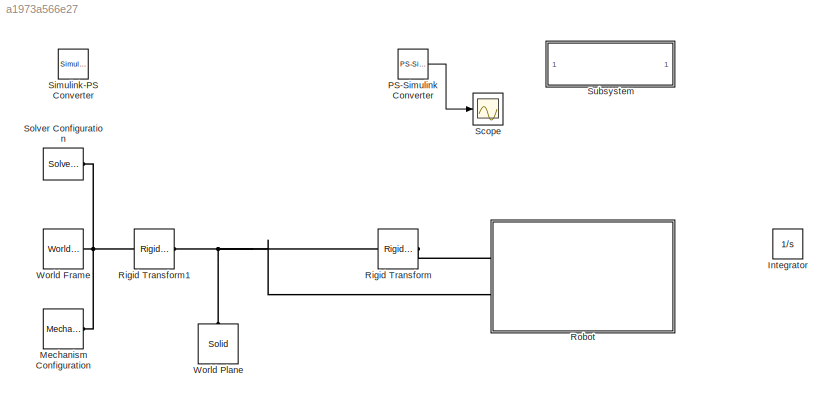
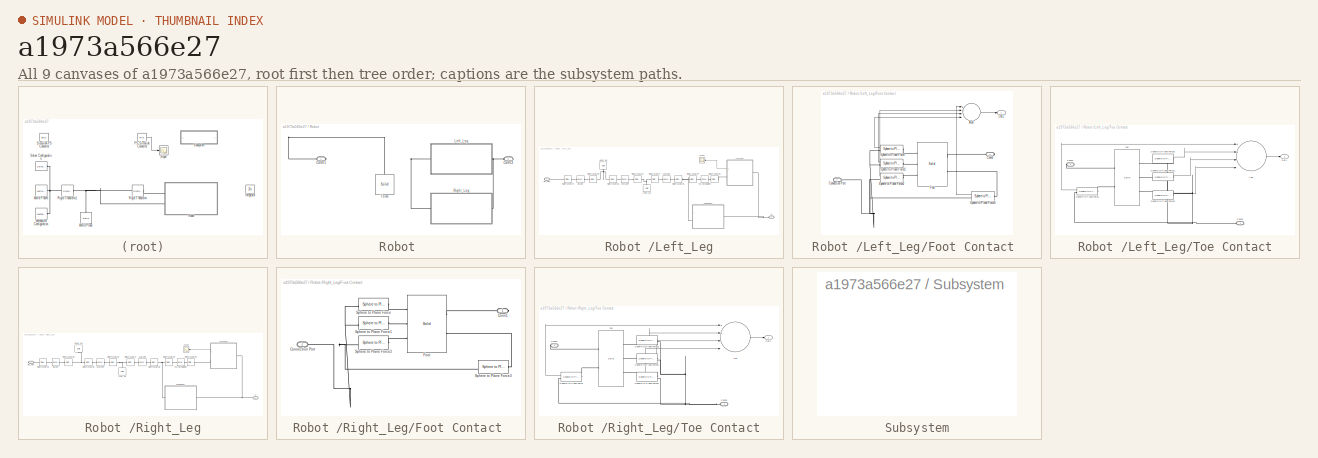
[diagram: thumbnail index - all 9 canvases of the model, root first then tree order]
MODEL slx_a1973a566e27
KIND model
CONFIG AbsTol = auto
CONFIG EnableMultiTasking = on
CONFIG FixedStep = 0.001
CONFIG MaxStep = auto
CONFIG MinStep = auto
CONFIG PreLoadFcn = parameters;\n
CONFIG RelTol = 1e-3
CONFIG SampleTimeConstraint = Unconstrained
CONFIG Solver = ode4
CONFIG SolverName = ode4
CONFIG StartTime = 0.0
CONFIG StopTime = 10.0
BLOCK [Integrator] Integrator
  Ports = [1, 1]
BLOCK [Reference] Mechanism Configuration  REF=sm_lib/Utilities/Mechanism
Configuration
  Ports = [0, 0, 0, 0, 0, 0, 1]
  SourceBlock = sm_lib/Utilities/Mechanism\nConfiguration
  SourceProductBaseCode = MS
  SourceProductName = Simscape Multibody
  SourceType = Mechanism\nConfiguration
BLOCK [Reference] PS-Simulink Converter  REF=nesl_utility/PS-Simulink
Converter
  Ports = [0, 1, 0, 0, 0, 1]
  SourceBlock = nesl_utility/PS-Simulink\nConverter
  SourceProductBaseCode = SS
  SourceProductName = Simscape
  SourceType = PS-Simulink\nConverter
BLOCK [Reference] Rigid Transform  REF=sm_lib/Frames and
Transforms/Rigid
Transform
  Ports = [0, 0, 0, 0, 0, 1, 1]
  SourceBlock = sm_lib/Frames and\nTransforms/Rigid\nTransform
  SourceProductBaseCode = MS
  SourceProductName = Simscape Multibody
  SourceType = Rigid\nTransform
BLOCK [Reference] Rigid Transform1  REF=sm_lib/Frames and
Transforms/Rigid
Transform
  Ports = [0, 0, 0, 0, 0, 1, 1]
  SourceBlock = sm_lib/Frames and\nTransforms/Rigid\nTransform
  SourceProductBaseCode = MS
  SourceProductName = Simscape Multibody
  SourceType = Rigid\nTransform
BLOCK [SubSystem] Robot 
  Ports = [0, 0, 0, 0, 0, 2]
  RequestExecContextInheritance = off
BLOCK [PMIOPort] Robot /Conn1
  Side = Left
BLOCK [PMIOPort] Robot /Conn2
  Port = 2
  Side = Left
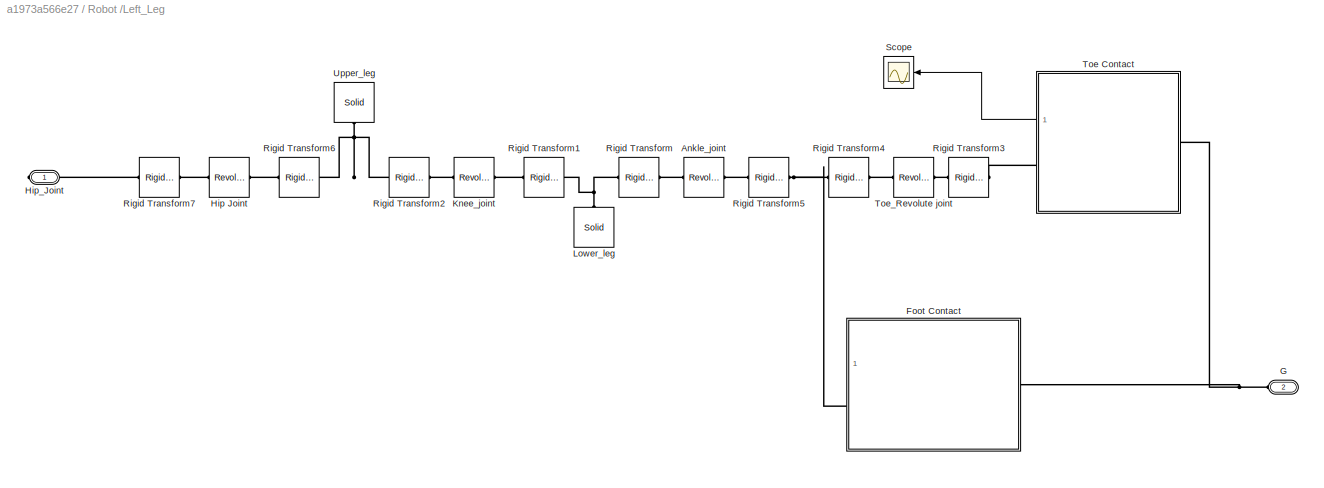
BLOCK [SubSystem] Robot /Left_Leg
  Ports = [0, 0, 0, 0, 0, 1, 1]
  RequestExecContextInheritance = off
BLOCK [Reference] Robot /Left_Leg/Ankle_joint  REF=sm_lib/Joints/Revolute Joint
  Ports = [0, 0, 0, 0, 0, 1, 1]
  SourceBlock = sm_lib/Joints/Revolute Joint
  SourceProductBaseCode = MS
  SourceProductName = Simscape Multibody
  SourceType = Revolute Joint
BLOCK [SubSystem] Robot /Left_Leg/Foot Contact 
  Ports = [0, 1, 0, 0, 0, 1, 1]
  RequestExecContextInheritance = off
BLOCK [Sum] Robot /Left_Leg/Foot Contact /Add
  InputSameDT = off
  Inputs = 4
  OutDataTypeStr = Inherit: Inherit via internal rule
  Ports = [4, 1]
  SaturateOnIntegerOverflow = off
BLOCK [PMIOPort] Robot /Left_Leg/Foot Contact /Conn1
  Side = Right
BLOCK [PMIOPort] Robot /Left_Leg/Foot Contact /Connection Port
  Port = 2
  Side = Left
BLOCK [Reference] Robot /Left_Leg/Foot Contact /Foot  REF=sm_lib/Body Elements/Solid
  Ports = [0, 0, 0, 0, 0, 3, 2]
  SourceBlock = sm_lib/Body Elements/Solid
  SourceProductBaseCode = MS
  SourceProductName = Simscape Multibody
  SourceType = Solid
BLOCK [Outport] Robot /Left_Leg/Foot Contact /Out1
  IconDisplay = Port number
BLOCK [Reference] Robot /Left_Leg/Foot Contact /Sphere to Plane Force  REF=Contact_Forces_Lib/3D/Sphere to Plane Force
  Ports = [0, 1, 0, 0, 0, 1, 1]
  SourceBlock = Contact_Forces_Lib/3D/Sphere to Plane Force
  SourceType = Sphere to Plane Force
BLOCK [Reference] Robot /Left_Leg/Foot Contact /Sphere to Plane Force1  REF=Contact_Forces_Lib/3D/Sphere to Plane Force
  Ports = [0, 1, 0, 0, 0, 1, 1]
  SourceBlock = Contact_Forces_Lib/3D/Sphere to Plane Force
  SourceType = Sphere to Plane Force
BLOCK [Reference] Robot /Left_Leg/Foot Contact /Sphere to Plane Force2  REF=Contact_Forces_Lib/3D/Sphere to Plane Force
  Ports = [0, 1, 0, 0, 0, 1, 1]
  SourceBlock = Contact_Forces_Lib/3D/Sphere to Plane Force
  SourceType = Sphere to Plane Force
BLOCK [Reference] Robot /Left_Leg/Foot Contact /Sphere to Plane Force3  REF=Contact_Forces_Lib/3D/Sphere to Plane Force
  Ports = [0, 1, 0, 0, 0, 1, 1]
  SourceBlock = Contact_Forces_Lib/3D/Sphere to Plane Force
  SourceType = Sphere to Plane Force
BLOCK [PMIOPort] Robot /Left_Leg/G
  Port = 2
  Side = Left
BLOCK [Reference] Robot /Left_Leg/Hip Joint  REF=sm_lib/Joints/Revolute Joint
  Ports = [0, 0, 0, 0, 0, 1, 1]
  SourceBlock = sm_lib/Joints/Revolute Joint
  SourceProductBaseCode = MS
  SourceProductName = Simscape Multibody
  SourceType = Revolute Joint
BLOCK [PMIOPort] Robot /Left_Leg/Hip_Joint
  Side = Right
BLOCK [Reference] Robot /Left_Leg/Knee_joint  REF=sm_lib/Joints/Revolute Joint
  Ports = [0, 0, 0, 0, 0, 1, 1]
  SourceBlock = sm_lib/Joints/Revolute Joint
  SourceProductBaseCode = MS
  SourceProductName = Simscape Multibody
  SourceType = Revolute Joint
BLOCK [Reference] Robot /Left_Leg/Lower_leg  REF=sm_lib/Body Elements/Solid
  Ports = [0, 0, 0, 0, 0, 0, 1]
  SourceBlock = sm_lib/Body Elements/Solid
  SourceProductBaseCode = MS
  SourceProductName = Simscape Multibody
  SourceType = Solid
BLOCK [Reference] Robot /Left_Leg/Rigid Transform  REF=sm_lib/Frames and
Transforms/Rigid
Transform
  Ports = [0, 0, 0, 0, 0, 1, 1]
  SourceBlock = sm_lib/Frames and\nTransforms/Rigid\nTransform
  SourceProductBaseCode = MS
  SourceProductName = Simscape Multibody
  SourceType = Rigid\nTransform
BLOCK [Reference] Robot /Left_Leg/Rigid Transform1  REF=sm_lib/Frames and
Transforms/Rigid
Transform
  Ports = [0, 0, 0, 0, 0, 1, 1]
  SourceBlock = sm_lib/Frames and\nTransforms/Rigid\nTransform
  SourceProductBaseCode = MS
  SourceProductName = Simscape Multibody
  SourceType = Rigid\nTransform
BLOCK [Reference] Robot /Left_Leg/Rigid Transform2  REF=sm_lib/Frames and
Transforms/Rigid
Transform
  Ports = [0, 0, 0, 0, 0, 1, 1]
  SourceBlock = sm_lib/Frames and\nTransforms/Rigid\nTransform
  SourceProductBaseCode = MS
  SourceProductName = Simscape Multibody
  SourceType = Rigid\nTransform
BLOCK [Reference] Robot /Left_Leg/Rigid Transform3  REF=sm_lib/Frames and
Transforms/Rigid
Transform
  Ports = [0, 0, 0, 0, 0, 1, 1]
  SourceBlock = sm_lib/Frames and\nTransforms/Rigid\nTransform
  SourceProductBaseCode = MS
  SourceProductName = Simscape Multibody
  SourceType = Rigid\nTransform
BLOCK [Reference] Robot /Left_Leg/Rigid Transform4  REF=sm_lib/Frames and
Transforms/Rigid
Transform
  Ports = [0, 0, 0, 0, 0, 1, 1]
  SourceBlock = sm_lib/Frames and\nTransforms/Rigid\nTransform
  SourceProductBaseCode = MS
  SourceProductName = Simscape Multibody
  SourceType = Rigid\nTransform
BLOCK [Reference] Robot /Left_Leg/Rigid Transform5  REF=sm_lib/Frames and
Transforms/Rigid
Transform
  Ports = [0, 0, 0, 0, 0, 1, 1]
  SourceBlock = sm_lib/Frames and\nTransforms/Rigid\nTransform
  SourceProductBaseCode = MS
  SourceProductName = Simscape Multibody
  SourceType = Rigid\nTransform
BLOCK [Reference] Robot /Left_Leg/Rigid Transform6  REF=sm_lib/Frames and
Transforms/Rigid
Transform
  Ports = [0, 0, 0, 0, 0, 1, 1]
  SourceBlock = sm_lib/Frames and\nTransforms/Rigid\nTransform
  SourceProductBaseCode = MS
  SourceProductName = Simscape Multibody
  SourceType = Rigid\nTransform
BLOCK [Reference] Robot /Left_Leg/Rigid Transform7  REF=sm_lib/Frames and
Transforms/Rigid
Transform
  Ports = [0, 0, 0, 0, 0, 1, 1]
  SourceBlock = sm_lib/Frames and\nTransforms/Rigid\nTransform
  SourceProductBaseCode = MS
  SourceProductName = Simscape Multibody
  SourceType = Rigid\nTransform
BLOCK [Scope] Robot /Left_Leg/Scope
  Floating = off
  NumInputPorts = 1
  Ports = [1]
  ScopeSpecificationString = Simulink.scopes.TimeScopeBlockCfg('CurrentConfiguration', extmgr.ConfigurationSet(extmgr.Configuration('Core','General UI',true),extmgr.Configuration('Core','Source UI',true),extmgr.Configuration('Sources','WiredSimulink',true,'DataLoggingVariableName','ScopeData1'),extmgr.Configuration('Visuals','Time Domain',true,'SerializedDisplays',{struct('MinYLimReal','-232.27032','MaxYLimReal','331.59422','...<+1620ch>
BLOCK [SubSystem] Robot /Left_Leg/Toe Contact
  Ports = [0, 1, 0, 0, 0, 1, 1]
  RequestExecContextInheritance = off
BLOCK [Sum] Robot /Left_Leg/Toe Contact/Add
  InputSameDT = off
  Inputs = 4
  OutDataTypeStr = Inherit: Inherit via internal rule
  Ports = [4, 1]
  SaturateOnIntegerOverflow = off
BLOCK [PMIOPort] Robot /Left_Leg/Toe Contact/Conn1
  Side = Right
BLOCK [PMIOPort] Robot /Left_Leg/Toe Contact/Conn2
  Port = 2
  Side = Left
BLOCK [Outport] Robot /Left_Leg/Toe Contact/Out1
  IconDisplay = Port number
BLOCK [Reference] Robot /Left_Leg/Toe Contact/Sphere to Plane Force  REF=Contact_Forces_Lib/3D/Sphere to Plane Force
  Ports = [0, 1, 0, 0, 0, 1, 1]
  SourceBlock = Contact_Forces_Lib/3D/Sphere to Plane Force
  SourceType = Sphere to Plane Force
BLOCK [Reference] Robot /Left_Leg/Toe Contact/Sphere to Plane Force1  REF=Contact_Forces_Lib/3D/Sphere to Plane Force
  Ports = [0, 1, 0, 0, 0, 1, 1]
  SourceBlock = Contact_Forces_Lib/3D/Sphere to Plane Force
  SourceType = Sphere to Plane Force
BLOCK [Reference] Robot /Left_Leg/Toe Contact/Sphere to Plane Force2  REF=Contact_Forces_Lib/3D/Sphere to Plane Force
  Ports = [0, 1, 0, 0, 0, 1, 1]
  SourceBlock = Contact_Forces_Lib/3D/Sphere to Plane Force
  SourceType = Sphere to Plane Force
BLOCK [Reference] Robot /Left_Leg/Toe Contact/Sphere to Plane Force3  REF=Contact_Forces_Lib/3D/Sphere to Plane Force
  Ports = [0, 1, 0, 0, 0, 1, 1]
  SourceBlock = Contact_Forces_Lib/3D/Sphere to Plane Force
  SourceType = Sphere to Plane Force
BLOCK [Reference] Robot /Left_Leg/Toe Contact/Toe  REF=sm_lib/Body Elements/Solid
  Ports = [0, 0, 0, 0, 0, 3, 2]
  SourceBlock = sm_lib/Body Elements/Solid
  SourceProductBaseCode = MS
  SourceProductName = Simscape Multibody
  SourceType = Solid
BLOCK [Reference] Robot /Left_Leg/Toe_Revolute joint  REF=sm_lib/Joints/Revolute Joint
  Ports = [0, 0, 0, 0, 0, 1, 1]
  SourceBlock = sm_lib/Joints/Revolute Joint
  SourceProductBaseCode = MS
  SourceProductName = Simscape Multibody
  SourceType = Revolute Joint
BLOCK [Reference] Robot /Left_Leg/Upper_leg  REF=sm_lib/Body Elements/Solid
  Ports = [0, 0, 0, 0, 0, 0, 1]
  SourceBlock = sm_lib/Body Elements/Solid
  SourceProductBaseCode = MS
  SourceProductName = Simscape Multibody
  SourceType = Solid
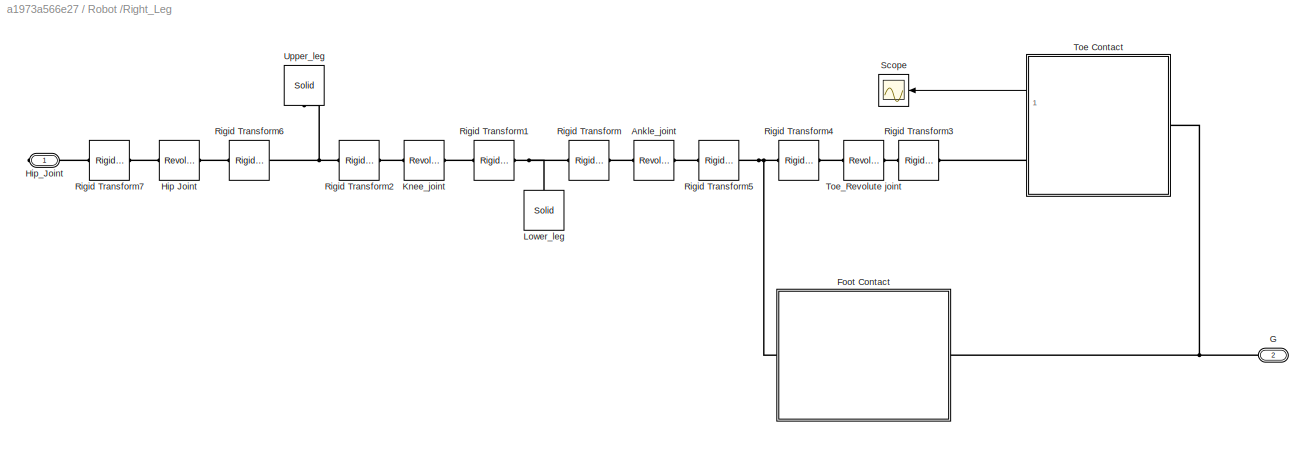
BLOCK [SubSystem] Robot /Right_Leg
  Ports = [0, 0, 0, 0, 0, 1, 1]
  RequestExecContextInheritance = off
BLOCK [Reference] Robot /Right_Leg/Ankle_joint  REF=sm_lib/Joints/Revolute Joint
  Ports = [0, 0, 0, 0, 0, 1, 1]
  SourceBlock = sm_lib/Joints/Revolute Joint
  SourceProductBaseCode = MS
  SourceProductName = Simscape Multibody
  SourceType = Revolute Joint
BLOCK [SubSystem] Robot /Right_Leg/Foot Contact 
  Ports = [0, 0, 0, 0, 0, 1, 1]
  RequestExecContextInheritance = off
BLOCK [PMIOPort] Robot /Right_Leg/Foot Contact /Conn1
  Side = Right
BLOCK [PMIOPort] Robot /Right_Leg/Foot Contact /Connection Port
  Port = 2
  Side = Left
BLOCK [Reference] Robot /Right_Leg/Foot Contact /Foot  REF=sm_lib/Body Elements/Solid
  Ports = [0, 0, 0, 0, 0, 3, 2]
  SourceBlock = sm_lib/Body Elements/Solid
  SourceProductBaseCode = MS
  SourceProductName = Simscape Multibody
  SourceType = Solid
BLOCK [Reference] Robot /Right_Leg/Foot Contact /Sphere to Plane Force  REF=Contact_Forces_Lib/3D/Sphere to Plane Force
  Ports = [0, 1, 0, 0, 0, 1, 1]
  SourceBlock = Contact_Forces_Lib/3D/Sphere to Plane Force
  SourceType = Sphere to Plane Force
BLOCK [Reference] Robot /Right_Leg/Foot Contact /Sphere to Plane Force1  REF=Contact_Forces_Lib/3D/Sphere to Plane Force
  Ports = [0, 1, 0, 0, 0, 1, 1]
  SourceBlock = Contact_Forces_Lib/3D/Sphere to Plane Force
  SourceType = Sphere to Plane Force
BLOCK [Reference] Robot /Right_Leg/Foot Contact /Sphere to Plane Force2  REF=Contact_Forces_Lib/3D/Sphere to Plane Force
  Ports = [0, 1, 0, 0, 0, 1, 1]
  SourceBlock = Contact_Forces_Lib/3D/Sphere to Plane Force
  SourceType = Sphere to Plane Force
BLOCK [Reference] Robot /Right_Leg/Foot Contact /Sphere to Plane Force3  REF=Contact_Forces_Lib/3D/Sphere to Plane Force
  Ports = [0, 1, 0, 0, 0, 1, 1]
  SourceBlock = Contact_Forces_Lib/3D/Sphere to Plane Force
  SourceType = Sphere to Plane Force
BLOCK [PMIOPort] Robot /Right_Leg/G
  Port = 2
  Side = Left
BLOCK [Reference] Robot /Right_Leg/Hip Joint  REF=sm_lib/Joints/Revolute Joint
  Ports = [0, 0, 0, 0, 0, 1, 1]
  SourceBlock = sm_lib/Joints/Revolute Joint
  SourceProductBaseCode = MS
  SourceProductName = Simscape Multibody
  SourceType = Revolute Joint
BLOCK [PMIOPort] Robot /Right_Leg/Hip_Joint
  Side = Right
BLOCK [Reference] Robot /Right_Leg/Knee_joint  REF=sm_lib/Joints/Revolute Joint
  Ports = [0, 0, 0, 0, 0, 1, 1]
  SourceBlock = sm_lib/Joints/Revolute Joint
  SourceProductBaseCode = MS
  SourceProductName = Simscape Multibody
  SourceType = Revolute Joint
BLOCK [Reference] Robot /Right_Leg/Lower_leg  REF=sm_lib/Body Elements/Solid
  Ports = [0, 0, 0, 0, 0, 0, 1]
  SourceBlock = sm_lib/Body Elements/Solid
  SourceProductBaseCode = MS
  SourceProductName = Simscape Multibody
  SourceType = Solid
BLOCK [Reference] Robot /Right_Leg/Rigid Transform  REF=sm_lib/Frames and
Transforms/Rigid
Transform
  Ports = [0, 0, 0, 0, 0, 1, 1]
  SourceBlock = sm_lib/Frames and\nTransforms/Rigid\nTransform
  SourceProductBaseCode = MS
  SourceProductName = Simscape Multibody
  SourceType = Rigid\nTransform
BLOCK [Reference] Robot /Right_Leg/Rigid Transform1  REF=sm_lib/Frames and
Transforms/Rigid
Transform
  Ports = [0, 0, 0, 0, 0, 1, 1]
  SourceBlock = sm_lib/Frames and\nTransforms/Rigid\nTransform
  SourceProductBaseCode = MS
  SourceProductName = Simscape Multibody
  SourceType = Rigid\nTransform
BLOCK [Reference] Robot /Right_Leg/Rigid Transform2  REF=sm_lib/Frames and
Transforms/Rigid
Transform
  Ports = [0, 0, 0, 0, 0, 1, 1]
  SourceBlock = sm_lib/Frames and\nTransforms/Rigid\nTransform
  SourceProductBaseCode = MS
  SourceProductName = Simscape Multibody
  SourceType = Rigid\nTransform
BLOCK [Reference] Robot /Right_Leg/Rigid Transform3  REF=sm_lib/Frames and
Transforms/Rigid
Transform
  Ports = [0, 0, 0, 0, 0, 1, 1]
  SourceBlock = sm_lib/Frames and\nTransforms/Rigid\nTransform
  SourceProductBaseCode = MS
  SourceProductName = Simscape Multibody
  SourceType = Rigid\nTransform
BLOCK [Reference] Robot /Right_Leg/Rigid Transform4  REF=sm_lib/Frames and
Transforms/Rigid
Transform
  Ports = [0, 0, 0, 0, 0, 1, 1]
  SourceBlock = sm_lib/Frames and\nTransforms/Rigid\nTransform
  SourceProductBaseCode = MS
  SourceProductName = Simscape Multibody
  SourceType = Rigid\nTransform
BLOCK [Reference] Robot /Right_Leg/Rigid Transform5  REF=sm_lib/Frames and
Transforms/Rigid
Transform
  Ports = [0, 0, 0, 0, 0, 1, 1]
  SourceBlock = sm_lib/Frames and\nTransforms/Rigid\nTransform
  SourceProductBaseCode = MS
  SourceProductName = Simscape Multibody
  SourceType = Rigid\nTransform
BLOCK [Reference] Robot /Right_Leg/Rigid Transform6  REF=sm_lib/Frames and
Transforms/Rigid
Transform
  Ports = [0, 0, 0, 0, 0, 1, 1]
  SourceBlock = sm_lib/Frames and\nTransforms/Rigid\nTransform
  SourceProductBaseCode = MS
  SourceProductName = Simscape Multibody
  SourceType = Rigid\nTransform
BLOCK [Reference] Robot /Right_Leg/Rigid Transform7  REF=sm_lib/Frames and
Transforms/Rigid
Transform
  Ports = [0, 0, 0, 0, 0, 1, 1]
  SourceBlock = sm_lib/Frames and\nTransforms/Rigid\nTransform
  SourceProductBaseCode = MS
  SourceProductName = Simscape Multibody
  SourceType = Rigid\nTransform
BLOCK [Scope] Robot /Right_Leg/Scope
  Floating = off
  NumInputPorts = 1
  Ports = [1]
  ScopeSpecificationString = Simulink.scopes.TimeScopeBlockCfg('CurrentConfiguration', extmgr.ConfigurationSet(extmgr.Configuration('Core','General UI',true),extmgr.Configuration('Core','Source UI',true),extmgr.Configuration('Sources','WiredSimulink',true,'DataLoggingVariableName','ScopeData2'),extmgr.Configuration('Visuals','Time Domain',true),extmgr.Configuration('Tools','Plot Navigation',true),extmgr.Configuration('Tools',...<+40ch>
BLOCK [SubSystem] Robot /Right_Leg/Toe Contact
  Ports = [0, 1, 0, 0, 0, 1, 1]
  RequestExecContextInheritance = off
BLOCK [Sum] Robot /Right_Leg/Toe Contact/Add
  InputSameDT = off
  Inputs = 4
  OutDataTypeStr = Inherit: Inherit via internal rule
  Ports = [4, 1]
  SaturateOnIntegerOverflow = off
BLOCK [PMIOPort] Robot /Right_Leg/Toe Contact/Conn1
  Side = Right
BLOCK [PMIOPort] Robot /Right_Leg/Toe Contact/Conn2
  Port = 2
  Side = Left
BLOCK [Outport] Robot /Right_Leg/Toe Contact/Out1
  IconDisplay = Port number
BLOCK [Reference] Robot /Right_Leg/Toe Contact/Sphere to Plane Force  REF=Contact_Forces_Lib/3D/Sphere to Plane Force
  Ports = [0, 1, 0, 0, 0, 1, 1]
  SourceBlock = Contact_Forces_Lib/3D/Sphere to Plane Force
  SourceType = Sphere to Plane Force
BLOCK [Reference] Robot /Right_Leg/Toe Contact/Sphere to Plane Force1  REF=Contact_Forces_Lib/3D/Sphere to Plane Force
  Ports = [0, 1, 0, 0, 0, 1, 1]
  SourceBlock = Contact_Forces_Lib/3D/Sphere to Plane Force
  SourceType = Sphere to Plane Force
BLOCK [Reference] Robot /Right_Leg/Toe Contact/Sphere to Plane Force2  REF=Contact_Forces_Lib/3D/Sphere to Plane Force
  Ports = [0, 1, 0, 0, 0, 1, 1]
  SourceBlock = Contact_Forces_Lib/3D/Sphere to Plane Force
  SourceType = Sphere to Plane Force
BLOCK [Reference] Robot /Right_Leg/Toe Contact/Sphere to Plane Force3  REF=Contact_Forces_Lib/3D/Sphere to Plane Force
  Ports = [0, 1, 0, 0, 0, 1, 1]
  SourceBlock = Contact_Forces_Lib/3D/Sphere to Plane Force
  SourceType = Sphere to Plane Force
BLOCK [Reference] Robot /Right_Leg/Toe Contact/Toe  REF=sm_lib/Body Elements/Solid
  Ports = [0, 0, 0, 0, 0, 3, 2]
  SourceBlock = sm_lib/Body Elements/Solid
  SourceProductBaseCode = MS
  SourceProductName = Simscape Multibody
  SourceType = Solid
BLOCK [Reference] Robot /Right_Leg/Toe_Revolute joint  REF=sm_lib/Joints/Revolute Joint
  Ports = [0, 0, 0, 0, 0, 1, 1]
  SourceBlock = sm_lib/Joints/Revolute Joint
  SourceProductBaseCode = MS
  SourceProductName = Simscape Multibody
  SourceType = Revolute Joint
BLOCK [Reference] Robot /Right_Leg/Upper_leg  REF=sm_lib/Body Elements/Solid
  Ports = [0, 0, 0, 0, 0, 0, 1]
  SourceBlock = sm_lib/Body Elements/Solid
  SourceProductBaseCode = MS
  SourceProductName = Simscape Multibody
  SourceType = Solid
BLOCK [Reference] Robot /Torso   REF=sm_lib/Body Elements/Solid
  Ports = [0, 0, 0, 0, 0, 0, 1]
  SourceBlock = sm_lib/Body Elements/Solid
  SourceProductBaseCode = MS
  SourceProductName = Simscape Multibody
  SourceType = Solid
BLOCK [Scope] Scope
  Floating = off
  NumInputPorts = 1
  Ports = [1]
  ScopeSpecificationString = Simulink.scopes.TimeScopeBlockCfg('CurrentConfiguration', extmgr.ConfigurationSet(extmgr.Configuration('Core','General UI',true),extmgr.Configuration('Core','Source UI',true),extmgr.Configuration('Sources','WiredSimulink',true,'DataLoggingVariableName','ScopeData1'),extmgr.Configuration('Visuals','Time Domain',true),extmgr.Configuration('Tools','Plot Navigation',true),extmgr.Configuration('Tools',...<+40ch>
BLOCK [Reference] Simulink-PS Converter  REF=nesl_utility/Simulink-PS
Converter
  Ports = [1, 0, 0, 0, 0, 0, 1]
  SourceBlock = nesl_utility/Simulink-PS\nConverter
  SourceProductBaseCode = SS
  SourceProductName = Simscape
  SourceType = Simulink-PS\nConverter
BLOCK [Reference] Solver Configuration  REF=nesl_utility/Solver
Configuration
  Ports = [0, 0, 0, 0, 0, 0, 1]
  SourceBlock = nesl_utility/Solver\nConfiguration
  SourceProductBaseCode = SS
  SourceProductName = Simscape
  SourceType = Solver\nConfiguration
BLOCK [SubSystem] Subsystem
  OpenFcn = open_system('sm_lib')
  Ports = []
  RequestExecContextInheritance = off
  ShowPortLabels = none
BLOCK [Reference] World Frame  REF=sm_lib/Frames and
Transforms/World Frame
  Ports = [0, 0, 0, 0, 0, 0, 1]
  SourceBlock = sm_lib/Frames and\nTransforms/World Frame
  SourceProductBaseCode = MS
  SourceProductName = Simscape Multibody
  SourceType = World Frame
BLOCK [Reference] World Plane  REF=sm_lib/Body Elements/Solid
  Ports = [0, 0, 0, 0, 0, 1]
  SourceBlock = sm_lib/Body Elements/Solid
  SourceProductBaseCode = MS
  SourceProductName = Simscape Multibody
  SourceType = Solid
LINE PS-Simulink Converter:1 -> Scope:1
LINE Robot /Left_Leg/Foot Contact /Add:1 -> Robot /Left_Leg/Foot Contact /Out1:1
LINE Robot /Left_Leg/Foot Contact /Sphere to Plane Force1:1 -> Robot /Left_Leg/Foot Contact /Add:3
LINE Robot /Left_Leg/Foot Contact /Sphere to Plane Force2:1 -> Robot /Left_Leg/Foot Contact /Add:2
LINE Robot /Left_Leg/Foot Contact /Sphere to Plane Force3:1 -> Robot /Left_Leg/Foot Contact /Add:1
LINE Robot /Left_Leg/Foot Contact /Sphere to Plane Force:1 -> Robot /Left_Leg/Foot Contact /Add:4
LINE Robot /Left_Leg/Toe Contact/Add:1 -> Robot /Left_Leg/Toe Contact/Out1:1
LINE Robot /Left_Leg/Toe Contact/Sphere to Plane Force1:1 -> Robot /Left_Leg/Toe Contact/Add:3
LINE Robot /Left_Leg/Toe Contact/Sphere to Plane Force2:1 -> Robot /Left_Leg/Toe Contact/Add:4
LINE Robot /Left_Leg/Toe Contact/Sphere to Plane Force3:1 -> Robot /Left_Leg/Toe Contact/Add:2
LINE Robot /Left_Leg/Toe Contact/Sphere to Plane Force:1 -> Robot /Left_Leg/Toe Contact/Add:1
LINE Robot /Left_Leg/Toe Contact:1 -> Robot /Left_Leg/Scope:1
LINE Robot /Right_Leg/Toe Contact/Add:1 -> Robot /Right_Leg/Toe Contact/Out1:1
LINE Robot /Right_Leg/Toe Contact/Sphere to Plane Force1:1 -> Robot /Right_Leg/Toe Contact/Add:3
LINE Robot /Right_Leg/Toe Contact/Sphere to Plane Force2:1 -> Robot /Right_Leg/Toe Contact/Add:4
LINE Robot /Right_Leg/Toe Contact/Sphere to Plane Force3:1 -> Robot /Right_Leg/Toe Contact/Add:2
LINE Robot /Right_Leg/Toe Contact/Sphere to Plane Force:1 -> Robot /Right_Leg/Toe Contact/Add:1
LINE Robot /Right_Leg/Toe Contact:1 -> Robot /Right_Leg/Scope:1
PNET net1: Mechanism Configuration:RConn1 -- Rigid Transform1:LConn1 -- Solver Configuration:RConn1 -- World Frame:RConn1
PNET net2: Rigid Transform1:RConn1 -- Rigid Transform:LConn1 -- Robot :LConn2 -- World Plane:LConn1
PLINE Rigid Transform:RConn1 -- Robot :LConn1
PNET net3: Robot /Conn1:RConn1 -- Robot /Left_Leg:RConn1 -- Robot /Right_Leg:RConn1 -- Robot /Torso :RConn1
PNET net4: Robot /Conn2:RConn1 -- Robot /Left_Leg:LConn1 -- Robot /Right_Leg:LConn1
PLINE Robot /Left_Leg/Ankle_joint:LConn1 -- Robot /Left_Leg/Rigid Transform5:LConn1
PLINE Robot /Left_Leg/Ankle_joint:RConn1 -- Robot /Left_Leg/Rigid Transform:RConn1
PLINE Robot /Left_Leg/Foot Contact /Conn1:RConn1 -- Robot /Left_Leg/Foot Contact /Foot:RConn1
PNET net5: Robot /Left_Leg/Foot Contact /Connection Port:RConn1 -- Robot /Left_Leg/Foot Contact /Sphere to Plane Force1:RConn1 -- Robot /Left_Leg/Foot Contact /Sphere to Plane Force2:RConn1 -- Robot /Left_Leg/Foot Contact /Sphere to Plane Force3:RConn1 -- Robot /Left_Leg/Foot Contact /Sphere to Plane Force:RConn1
PLINE Robot /Left_Leg/Foot Contact /Foot:LConn1 -- Robot /Left_Leg/Foot Contact /Sphere to Plane Force:LConn1
PLINE Robot /Left_Leg/Foot Contact /Foot:LConn2 -- Robot /Left_Leg/Foot Contact /Sphere to Plane Force1:LConn1
PLINE Robot /Left_Leg/Foot Contact /Foot:LConn3 -- Robot /Left_Leg/Foot Contact /Sphere to Plane Force2:LConn1
PLINE Robot /Left_Leg/Foot Contact /Foot:RConn2 -- Robot /Left_Leg/Foot Contact /Sphere to Plane Force3:LConn1
PNET net6: Robot /Left_Leg/Foot Contact :LConn1 -- Robot /Left_Leg/G:RConn1 -- Robot /Left_Leg/Toe Contact:LConn1
PNET net7: Robot /Left_Leg/Foot Contact :RConn1 -- Robot /Left_Leg/Rigid Transform4:LConn1 -- Robot /Left_Leg/Rigid Transform5:RConn1
PLINE Robot /Left_Leg/Hip Joint:LConn1 -- Robot /Left_Leg/Rigid Transform7:RConn1
PLINE Robot /Left_Leg/Hip Joint:RConn1 -- Robot /Left_Leg/Rigid Transform6:RConn1
PLINE Robot /Left_Leg/Hip_Joint:RConn1 -- Robot /Left_Leg/Rigid Transform7:LConn1
PLINE Robot /Left_Leg/Knee_joint:LConn1 -- Robot /Left_Leg/Rigid Transform2:RConn1
PLINE Robot /Left_Leg/Knee_joint:RConn1 -- Robot /Left_Leg/Rigid Transform1:RConn1
PNET net8: Robot /Left_Leg/Lower_leg:RConn1 -- Robot /Left_Leg/Rigid Transform1:LConn1 -- Robot /Left_Leg/Rigid Transform:LConn1
PNET net9: Robot /Left_Leg/Rigid Transform2:LConn1 -- Robot /Left_Leg/Rigid Transform6:LConn1 -- Robot /Left_Leg/Upper_leg:RConn1
PLINE Robot /Left_Leg/Rigid Transform3:LConn1 -- Robot /Left_Leg/Toe Contact:RConn1
PLINE Robot /Left_Leg/Rigid Transform3:RConn1 -- Robot /Left_Leg/Toe_Revolute joint:RConn1
PLINE Robot /Left_Leg/Rigid Transform4:RConn1 -- Robot /Left_Leg/Toe_Revolute joint:LConn1
PLINE Robot /Left_Leg/Toe Contact/Conn1:RConn1 -- Robot /Left_Leg/Toe Contact/Toe:RConn1
PNET net10: Robot /Left_Leg/Toe Contact/Conn2:RConn1 -- Robot /Left_Leg/Toe Contact/Sphere to Plane Force1:RConn1 -- Robot /Left_Leg/Toe Contact/Sphere to Plane Force2:RConn1 -- Robot /Left_Leg/Toe Contact/Sphere to Plane Force3:RConn1 -- Robot /Left_Leg/Toe Contact/Sphere to Plane Force:RConn1
PLINE Robot /Left_Leg/Toe Contact/Sphere to Plane Force1:LConn1 -- Robot /Left_Leg/Toe Contact/Toe:LConn2
PLINE Robot /Left_Leg/Toe Contact/Sphere to Plane Force2:LConn1 -- Robot /Left_Leg/Toe Contact/Toe:LConn3
PLINE Robot /Left_Leg/Toe Contact/Sphere to Plane Force3:LConn1 -- Robot /Left_Leg/Toe Contact/Toe:LConn1
PLINE Robot /Left_Leg/Toe Contact/Sphere to Plane Force:LConn1 -- Robot /Left_Leg/Toe Contact/Toe:RConn2
PLINE Robot /Right_Leg/Ankle_joint:LConn1 -- Robot /Right_Leg/Rigid Transform5:LConn1
PLINE Robot /Right_Leg/Ankle_joint:RConn1 -- Robot /Right_Leg/Rigid Transform:RConn1
PLINE Robot /Right_Leg/Foot Contact /Conn1:RConn1 -- Robot /Right_Leg/Foot Contact /Foot:RConn1
PNET net11: Robot /Right_Leg/Foot Contact /Connection Port:RConn1 -- Robot /Right_Leg/Foot Contact /Sphere to Plane Force1:RConn1 -- Robot /Right_Leg/Foot Contact /Sphere to Plane Force2:RConn1 -- Robot /Right_Leg/Foot Contact /Sphere to Plane Force3:RConn1 -- Robot /Right_Leg/Foot Contact /Sphere to Plane Force:RConn1
PLINE Robot /Right_Leg/Foot Contact /Foot:LConn1 -- Robot /Right_Leg/Foot Contact /Sphere to Plane Force:LConn1
PLINE Robot /Right_Leg/Foot Contact /Foot:LConn2 -- Robot /Right_Leg/Foot Contact /Sphere to Plane Force1:LConn1
PLINE Robot /Right_Leg/Foot Contact /Foot:LConn3 -- Robot /Right_Leg/Foot Contact /Sphere to Plane Force2:LConn1
PLINE Robot /Right_Leg/Foot Contact /Foot:RConn2 -- Robot /Right_Leg/Foot Contact /Sphere to Plane Force3:LConn1
PNET net12: Robot /Right_Leg/Foot Contact :LConn1 -- Robot /Right_Leg/G:RConn1 -- Robot /Right_Leg/Toe Contact:LConn1
PNET net13: Robot /Right_Leg/Foot Contact :RConn1 -- Robot /Right_Leg/Rigid Transform4:LConn1 -- Robot /Right_Leg/Rigid Transform5:RConn1
PLINE Robot /Right_Leg/Hip Joint:LConn1 -- Robot /Right_Leg/Rigid Transform7:RConn1
PLINE Robot /Right_Leg/Hip Joint:RConn1 -- Robot /Right_Leg/Rigid Transform6:RConn1
PLINE Robot /Right_Leg/Hip_Joint:RConn1 -- Robot /Right_Leg/Rigid Transform7:LConn1
PLINE Robot /Right_Leg/Knee_joint:LConn1 -- Robot /Right_Leg/Rigid Transform2:RConn1
PLINE Robot /Right_Leg/Knee_joint:RConn1 -- Robot /Right_Leg/Rigid Transform1:RConn1
PNET net14: Robot /Right_Leg/Lower_leg:RConn1 -- Robot /Right_Leg/Rigid Transform1:LConn1 -- Robot /Right_Leg/Rigid Transform:LConn1
PNET net15: Robot /Right_Leg/Rigid Transform2:LConn1 -- Robot /Right_Leg/Rigid Transform6:LConn1 -- Robot /Right_Leg/Upper_leg:RConn1
PLINE Robot /Right_Leg/Rigid Transform3:LConn1 -- Robot /Right_Leg/Toe Contact:RConn1
PLINE Robot /Right_Leg/Rigid Transform3:RConn1 -- Robot /Right_Leg/Toe_Revolute joint:RConn1
PLINE Robot /Right_Leg/Rigid Transform4:RConn1 -- Robot /Right_Leg/Toe_Revolute joint:LConn1
PLINE Robot /Right_Leg/Toe Contact/Conn1:RConn1 -- Robot /Right_Leg/Toe Contact/Toe:RConn1
PNET net16: Robot /Right_Leg/Toe Contact/Conn2:RConn1 -- Robot /Right_Leg/Toe Contact/Sphere to Plane Force1:RConn1 -- Robot /Right_Leg/Toe Contact/Sphere to Plane Force2:RConn1 -- Robot /Right_Leg/Toe Contact/Sphere to Plane Force3:RConn1 -- Robot /Right_Leg/Toe Contact/Sphere to Plane Force:RConn1
PLINE Robot /Right_Leg/Toe Contact/Sphere to Plane Force1:LConn1 -- Robot /Right_Leg/Toe Contact/Toe:LConn2
PLINE Robot /Right_Leg/Toe Contact/Sphere to Plane Force2:LConn1 -- Robot /Right_Leg/Toe Contact/Toe:LConn3
PLINE Robot /Right_Leg/Toe Contact/Sphere to Plane Force3:LConn1 -- Robot /Right_Leg/Toe Contact/Toe:LConn1
PLINE Robot /Right_Leg/Toe Contact/Sphere to Plane Force:LConn1 -- Robot /Right_Leg/Toe Contact/Toe:RConn2
note: PNET lines group multi-terminal physical nets as a canonical sorted terminal list (undirected conserving connections); 2-terminal nets keep the pairwise PLINE form
